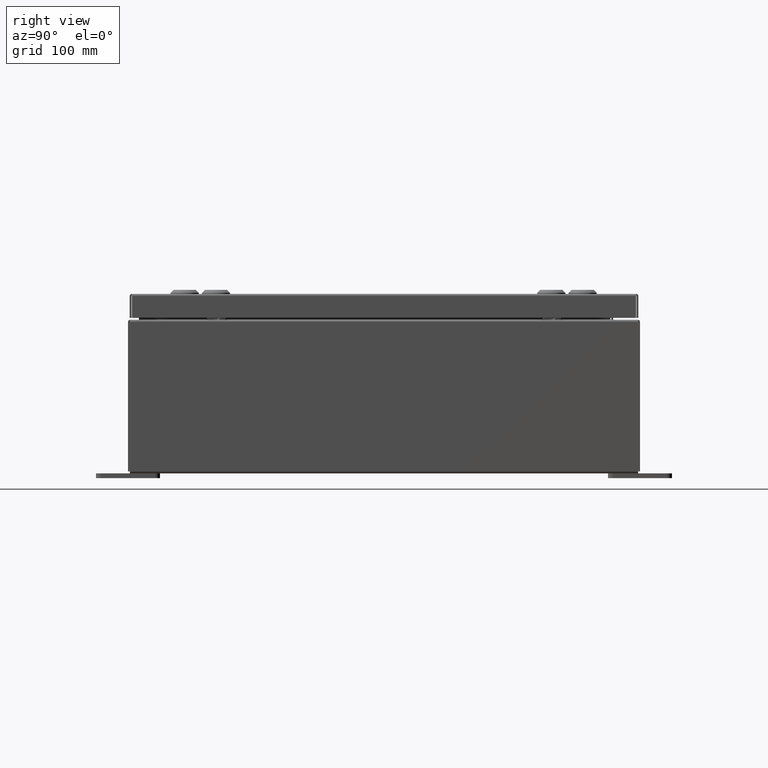
[diagram: clean part render]
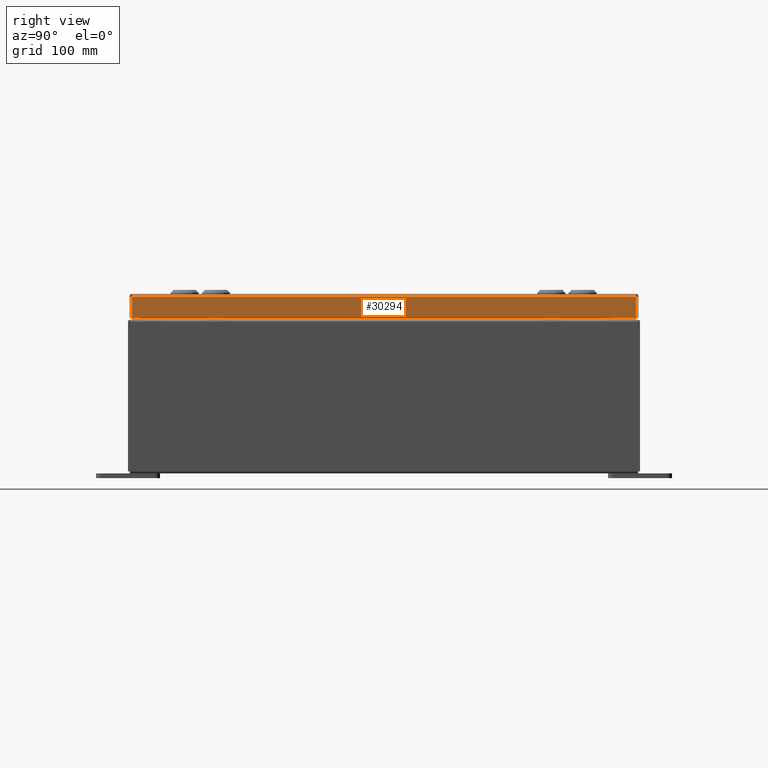
[diagram: same view with one face highlighted and labeled with its STEP entity id]
A machine part, right view. The second image highlights one B-rep face of the part: STEP entity #30294.
In plain terms, the highlighted planar face has unit normal (1, 0, 0).
Its self-contained STEP definition (entity closure, byte-faithful):
#77 = CARTESIAN_POINT ( 'NONE',  ( 7.937500000000000000, -9.848657864376271200, -0.08769999999999997200 ) ) ;
#211 = DIRECTION ( 'NONE',  ( -3.798629886902798700E-015, -6.982962677686267500E-015, 1.000000000000000000 ) ) ;
#3597 = VECTOR ( 'NONE', #22643, 39.37007874015748100 ) ;
#4078 = LINE ( 'NONE', #10122, #5606 ) ;
#5606 = VECTOR ( 'NONE', #44247, 39.37007874015748100 ) ;
#5693 = EDGE_CURVE ( 'NONE', #13295, #58632, #31629, .T. ) ;
#6169 = ORIENTED_EDGE ( 'NONE', *, *, #19019, .F. ) ;
#6408 = CARTESIAN_POINT ( 'NONE',  ( 7.937500000000003600, 9.848657864376273000, -0.9376999999999997600 ) ) ;
#7783 = ORIENTED_EDGE ( 'NONE', *, *, #40995, .T. ) ;
#7940 = VERTEX_POINT ( 'NONE', #55214 ) ;
#9711 = CARTESIAN_POINT ( 'NONE',  ( 7.937500000000003600, -9.848657864376264100, -0.9376999999999997600 ) ) ;
#10122 = CARTESIAN_POINT ( 'NONE',  ( 7.937500000000000000, 0.0000000000000000000, -0.08769999999999997200 ) ) ;
#11513 = DIRECTION ( 'NONE',  ( 3.798629886902798700E-015, 0.0000000000000000000, -1.000000000000000000 ) ) ;
#12322 = DIRECTION ( 'NONE',  ( 0.0000000000000000000, -1.000000000000000000, 0.0000000000000000000 ) ) ;
#13295 = VERTEX_POINT ( 'NONE', #6408 ) ;
#14518 = VECTOR ( 'NONE', #211, 39.37007874015748100 ) ;
#15179 = AXIS2_PLACEMENT_3D ( 'NONE', #30959, #40778, #11513 ) ;
#15856 = ORIENTED_EDGE ( 'NONE', *, *, #5693, .F. ) ;
#16595 = LINE ( 'NONE', #42077, #3597 ) ;
#18579 = VECTOR ( 'NONE', #12322, 39.37007874015748100 ) ;
#19019 = EDGE_CURVE ( 'NONE', #58632, #61590, #16595, .T. ) ;
#21257 = ORIENTED_EDGE ( 'NONE', *, *, #45466, .T. ) ;
#21363 = FACE_OUTER_BOUND ( 'NONE', #23006, .T. ) ;
#22488 = CARTESIAN_POINT ( 'NONE',  ( 7.937500000000003600, -9.937500000000001800, -0.9376999999999997600 ) ) ;
#22643 = DIRECTION ( 'NONE',  ( -3.798629886902798700E-015, -6.982962677686267500E-015, 1.000000000000000000 ) ) ;
#23006 = EDGE_LOOP ( 'NONE', ( #6169, #15856, #21257, #7783 ) ) ;
#29572 = CARTESIAN_POINT ( 'NONE',  ( 7.937500000000000000, 9.848657864376265900, 9.918524867554336000E-014 ) ) ;
#30294 = ADVANCED_FACE ( 'NONE', ( #21363 ), #35886, .T. ) ;
#30959 = CARTESIAN_POINT ( 'NONE',  ( 7.937500000000000000, 0.0000000000000000000, 3.041243838330255000E-014 ) ) ;
#31629 = LINE ( 'NONE', #22488, #18579 ) ;
#35886 = PLANE ( 'NONE',  #15179 ) ;
#40778 = DIRECTION ( 'NONE',  ( 1.000000000000000000, 0.0000000000000000000, 3.798629886902798700E-015 ) ) ;
#40995 = EDGE_CURVE ( 'NONE', #7940, #61590, #4078, .T. ) ;
#42077 = CARTESIAN_POINT ( 'NONE',  ( 7.937500000000000000, -9.848657864376271200, -0.07469999999999972500 ) ) ;
#44247 = DIRECTION ( 'NONE',  ( 0.0000000000000000000, -1.000000000000000000, 0.0000000000000000000 ) ) ;
#45466 = EDGE_CURVE ( 'NONE', #13295, #7940, #51841, .T. ) ;
#51841 = LINE ( 'NONE', #29572, #14518 ) ;
#55214 = CARTESIAN_POINT ( 'NONE',  ( 7.937500000000000000, 9.848657864376269400, -0.08769999999999997200 ) ) ;
#58632 = VERTEX_POINT ( 'NONE', #9711 ) ;
#61590 = VERTEX_POINT ( 'NONE', #77 ) ;